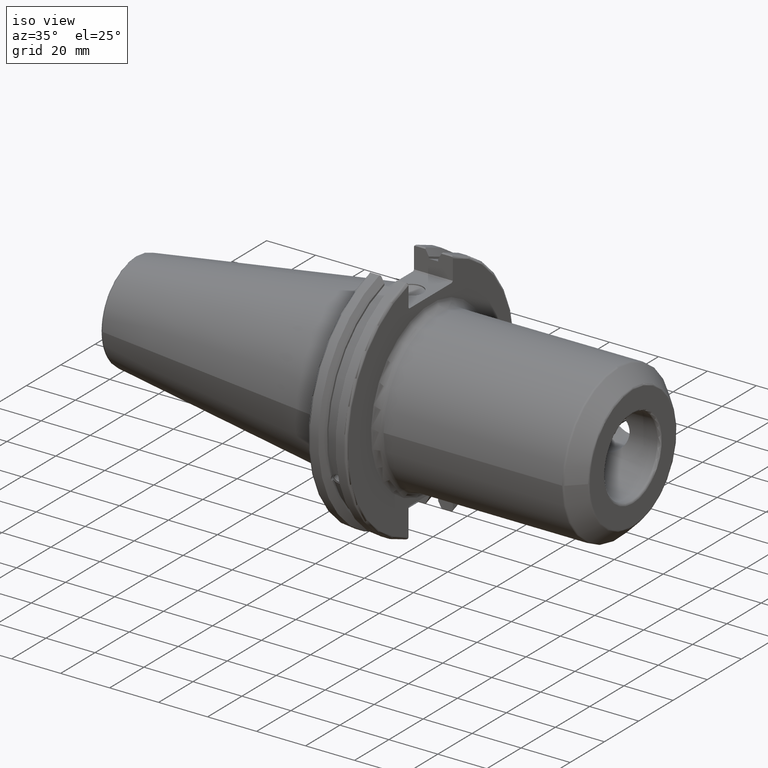
[diagram: clean part render]
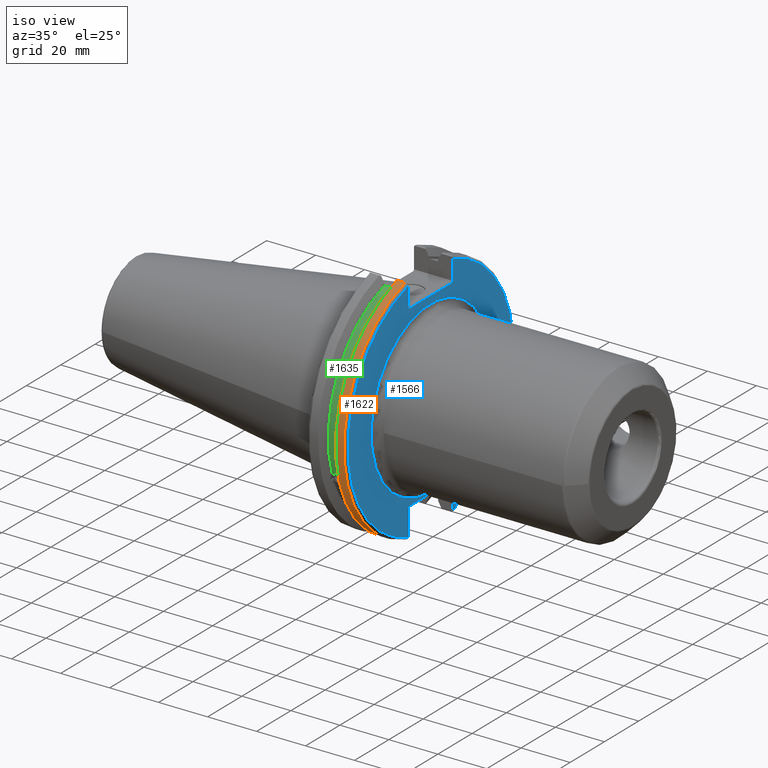
[diagram: same view with three faces highlighted in distinct colors, each labeled with its STEP entity id]
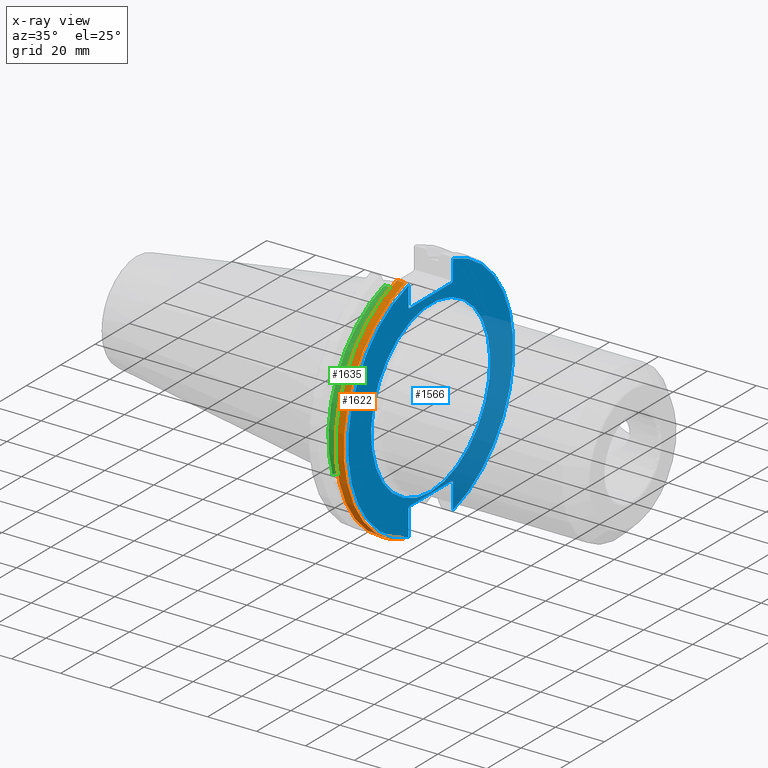
[diagram: x-ray of the same camera — body ghosted, the three highlighted faces saturated]
A machine part, iso view with three faces highlighted in distinct colors.
The next image is the same camera in x-ray (body ghosted, the three faces saturated) — at least one of them is partly hidden behind the body in this view.
Their STEP definitions:

[orange] entity #1622 — the highlighted cylindrical surface (partial cylindrical patch) has radius 49.2125 mm, axis along (1, 0, 0).
#192=FACE_OUTER_BOUND('',#307,.T.);
#307=EDGE_LOOP('',(#1434,#1435,#1436,#1437));
#461=LINE('',#3335,#555);
#462=LINE('',#3337,#556);
#555=VECTOR('',#2211,10.);
#556=VECTOR('',#2214,10.);
#598=CIRCLE('',#1729,49.2125);
#624=CIRCLE('',#1780,49.2125);
#713=VERTEX_POINT('',#2811);
#714=VERTEX_POINT('',#2815);
#778=VERTEX_POINT('',#3180);
#779=VERTEX_POINT('',#3189);
#894=EDGE_CURVE('',#714,#713,#598,.T.);
#981=EDGE_CURVE('',#778,#779,#624,.T.);
#1025=EDGE_CURVE('',#779,#713,#461,.T.);
#1026=EDGE_CURVE('',#714,#778,#462,.T.);
#1434=ORIENTED_EDGE('',*,*,#981,.F.);
#1435=ORIENTED_EDGE('',*,*,#1026,.F.);
#1436=ORIENTED_EDGE('',*,*,#894,.T.);
#1437=ORIENTED_EDGE('',*,*,#1025,.F.);
#1545=CYLINDRICAL_SURFACE('',#1808,49.2125);
#1622=ADVANCED_FACE('',(#192),#1545,.T.);
#1729=AXIS2_PLACEMENT_3D('',#2816,#1997,#1998);
#1780=AXIS2_PLACEMENT_3D('',#3190,#2135,#2136);
#1808=AXIS2_PLACEMENT_3D('',#3336,#2212,#2213);
#1997=DIRECTION('center_axis',(1.,0.,0.));
#1998=DIRECTION('ref_axis',(0.,0.,-1.));
#2135=DIRECTION('center_axis',(1.,0.,0.));
#2136=DIRECTION('ref_axis',(0.,-1.,1.60812264967664E-16));
#2211=DIRECTION('',(-1.,0.,0.));
#2212=DIRECTION('center_axis',(1.,0.,0.));
#2213=DIRECTION('ref_axis',(0.,-1.,1.22464679914735E-16));
#2214=DIRECTION('',(1.,0.,0.));
#2811=CARTESIAN_POINT('',(14.6602090340487,-13.4317035994433,-47.3440544806494));
#2815=CARTESIAN_POINT('',(14.6602090340487,-13.4317035994433,47.3440544806494));
#2816=CARTESIAN_POINT('Origin',(14.6602090340487,0.,0.));
#3180=CARTESIAN_POINT('',(18.05,-13.4317035994433,47.3440544806494));
#3189=CARTESIAN_POINT('',(18.05,-13.4317035994433,-47.3440544806494));
#3190=CARTESIAN_POINT('Origin',(18.05,0.,0.));
#3335=CARTESIAN_POINT('',(16.8551045170244,-13.4317035994433,-47.3440544806494));
#3336=CARTESIAN_POINT('Origin',(16.8551045170244,0.,0.));
#3337=CARTESIAN_POINT('',(16.8551045170244,-13.4317035994433,47.3440544806494));

[blue] entity #1566 — the highlighted planar face has unit normal (1, 0, 0).
#64=FACE_BOUND('',#235,.T.);
#86=PLANE('',#1702);
#136=FACE_OUTER_BOUND('',#234,.T.);
#234=EDGE_LOOP('',(#1118,#1119,#1120,#1121,#1122,#1123,#1124,#1125,#1126,
#1127,#1128,#1129));
#235=EDGE_LOOP('',(#1130));
#383=LINE('',#2503,#477);
#384=LINE('',#2505,#478);
#385=LINE('',#2507,#479);
#386=LINE('',#2509,#480);
#387=LINE('',#2511,#481);
#388=LINE('',#2515,#482);
#389=LINE('',#2517,#483);
#390=LINE('',#2519,#484);
#391=LINE('',#2521,#485);
#392=LINE('',#2522,#486);
#477=VECTOR('',#1925,10.);
#478=VECTOR('',#1926,10.);
#479=VECTOR('',#1927,10.);
#480=VECTOR('',#1928,10.);
#481=VECTOR('',#1929,10.);
#482=VECTOR('',#1932,10.);
#483=VECTOR('',#1933,10.);
#484=VECTOR('',#1934,10.);
#485=VECTOR('',#1935,10.);
#486=VECTOR('',#1936,10.);
#585=CIRCLE('',#1701,34.75);
#586=CIRCLE('',#1703,48.2125);
#587=CIRCLE('',#1704,48.2125);
#670=VERTEX_POINT('',#2495);
#671=VERTEX_POINT('',#2499);
#672=VERTEX_POINT('',#2500);
#673=VERTEX_POINT('',#2502);
#674=VERTEX_POINT('',#2504);
#675=VERTEX_POINT('',#2506);
#676=VERTEX_POINT('',#2508);
#677=VERTEX_POINT('',#2510);
#678=VERTEX_POINT('',#2512);
#679=VERTEX_POINT('',#2514);
#680=VERTEX_POINT('',#2516);
#681=VERTEX_POINT('',#2518);
#682=VERTEX_POINT('',#2520);
#843=EDGE_CURVE('',#670,#670,#585,.T.);
#844=EDGE_CURVE('',#671,#672,#586,.T.);
#845=EDGE_CURVE('',#671,#673,#383,.T.);
#846=EDGE_CURVE('',#674,#673,#384,.T.);
#847=EDGE_CURVE('',#674,#675,#385,.T.);
#848=EDGE_CURVE('',#676,#675,#386,.T.);
#849=EDGE_CURVE('',#676,#677,#387,.T.);
#850=EDGE_CURVE('',#678,#677,#587,.T.);
#851=EDGE_CURVE('',#678,#679,#388,.T.);
#852=EDGE_CURVE('',#680,#679,#389,.T.);
#853=EDGE_CURVE('',#680,#681,#390,.T.);
#854=EDGE_CURVE('',#682,#681,#391,.T.);
#855=EDGE_CURVE('',#682,#672,#392,.T.);
#1118=ORIENTED_EDGE('',*,*,#844,.F.);
#1119=ORIENTED_EDGE('',*,*,#845,.T.);
#1120=ORIENTED_EDGE('',*,*,#846,.F.);
#1121=ORIENTED_EDGE('',*,*,#847,.T.);
#1122=ORIENTED_EDGE('',*,*,#848,.F.);
#1123=ORIENTED_EDGE('',*,*,#849,.T.);
#1124=ORIENTED_EDGE('',*,*,#850,.F.);
#1125=ORIENTED_EDGE('',*,*,#851,.T.);
#1126=ORIENTED_EDGE('',*,*,#852,.F.);
#1127=ORIENTED_EDGE('',*,*,#853,.T.);
#1128=ORIENTED_EDGE('',*,*,#854,.F.);
#1129=ORIENTED_EDGE('',*,*,#855,.T.);
#1130=ORIENTED_EDGE('',*,*,#843,.F.);
#1566=ADVANCED_FACE('',(#136,#64),#86,.T.);
#1701=AXIS2_PLACEMENT_3D('',#2497,#1919,#1920);
#1702=AXIS2_PLACEMENT_3D('',#2498,#1921,#1922);
#1703=AXIS2_PLACEMENT_3D('',#2501,#1923,#1924);
#1704=AXIS2_PLACEMENT_3D('',#2513,#1930,#1931);
#1919=DIRECTION('center_axis',(1.,0.,0.));
#1920=DIRECTION('ref_axis',(0.,-1.,-1.22464679914735E-16));
#1921=DIRECTION('center_axis',(1.,0.,0.));
#1922=DIRECTION('ref_axis',(0.,0.,-1.));
#1923=DIRECTION('center_axis',(-1.,0.,0.));
#1924=DIRECTION('ref_axis',(0.,1.,-6.12323399573677E-17));
#1925=DIRECTION('',(0.,0.,-1.));
#1926=DIRECTION('',(0.,0.707106781186549,0.707106781186546));
#1927=DIRECTION('',(0.,-1.,0.));
#1928=DIRECTION('',(0.,0.707106781186549,-0.707106781186546));
#1929=DIRECTION('',(0.,0.,1.));
#1930=DIRECTION('center_axis',(-1.,0.,0.));
#1931=DIRECTION('ref_axis',(0.,-1.,1.60812264967664E-16));
#1932=DIRECTION('',(0.,0.,1.));
#1933=DIRECTION('',(0.,-0.707106781186549,-0.707106781186546));
#1934=DIRECTION('',(0.,1.,0.));
#1935=DIRECTION('',(0.,-0.707106781186549,0.707106781186546));
#1936=DIRECTION('',(0.,0.,-1.));
#2495=CARTESIAN_POINT('',(19.05,-4.25564762703705E-15,-34.75));
#2497=CARTESIAN_POINT('Origin',(19.05,0.,0.));
#2498=CARTESIAN_POINT('Origin',(19.05,0.,0.));
#2499=CARTESIAN_POINT('',(19.05,12.95,46.4407434937254));
#2500=CARTESIAN_POINT('',(19.05,12.95,-46.4407434937254));
#2501=CARTESIAN_POINT('Origin',(19.05,0.,0.));
#2502=CARTESIAN_POINT('',(19.05,12.95,38.219));
#2503=CARTESIAN_POINT('',(19.05,12.95,18.8595));
#2504=CARTESIAN_POINT('',(19.05,12.45,37.719));
#2505=CARTESIAN_POINT('',(19.05,0.0327499999999836,25.30175));
#2506=CARTESIAN_POINT('',(19.05,-12.45,37.719));
#2507=CARTESIAN_POINT('',(19.05,0.,37.719));
#2508=CARTESIAN_POINT('',(19.05,-12.95,38.219));
#2509=CARTESIAN_POINT('',(19.05,-0.0327499999999817,25.30175));
#2510=CARTESIAN_POINT('',(19.05,-12.95,46.4407434937254));
#2511=CARTESIAN_POINT('',(19.05,-12.95,18.8595));
#2512=CARTESIAN_POINT('',(19.05,-12.95,-46.4407434937254));
#2513=CARTESIAN_POINT('Origin',(19.05,0.,0.));
#2514=CARTESIAN_POINT('',(19.05,-12.95,-35.806));
#2515=CARTESIAN_POINT('',(19.05,-12.95,-17.653));
#2516=CARTESIAN_POINT('',(19.05,-12.45,-35.306));
#2517=CARTESIAN_POINT('',(19.05,-0.635999999999989,-23.492));
#2518=CARTESIAN_POINT('',(19.05,12.45,-35.306));
#2519=CARTESIAN_POINT('',(19.05,-3.33066907387547E-15,-35.306));
#2520=CARTESIAN_POINT('',(19.05,12.95,-35.806));
#2521=CARTESIAN_POINT('',(19.05,0.635999999999982,-23.492));
#2522=CARTESIAN_POINT('',(19.05,12.95,-17.653));

[green] entity #1635 — the highlighted cylindrical surface (partial cylindrical patch) has radius 45.6435 mm, axis along (1, 0, 0).
#205=FACE_OUTER_BOUND('',#320,.T.);
#320=EDGE_LOOP('',(#1493,#1494,#1495,#1496));
#347=B_SPLINE_CURVE_WITH_KNOTS('',3,(#2728,#2729,#2730,#2731,#2732,#2733,
#2734,#2735,#2736,#2737,#2738,#2739,#2740,#2741),.UNSPECIFIED.,.F.,.F.,
(4,2,2,2,2,2,4),(0.40154831257669,0.474697095495631,0.553813286063443,0.632929476631254,
0.712045667199066,0.791161857766877,0.864310640685818),.UNSPECIFIED.);
#444=LINE('',#3217,#538);
#538=VECTOR('',#2142,10.);
#640=CIRCLE('',#1826,45.6435);
#642=CIRCLE('',#1830,45.6435);
#699=VERTEX_POINT('',#2725);
#700=VERTEX_POINT('',#2727);
#783=VERTEX_POINT('',#3214);
#784=VERTEX_POINT('',#3216);
#877=EDGE_CURVE('',#700,#699,#347,.T.);
#988=EDGE_CURVE('',#784,#783,#444,.T.);
#1038=EDGE_CURVE('',#783,#700,#640,.T.);
#1040=EDGE_CURVE('',#784,#699,#642,.T.);
#1493=ORIENTED_EDGE('',*,*,#877,.T.);
#1494=ORIENTED_EDGE('',*,*,#1040,.F.);
#1495=ORIENTED_EDGE('',*,*,#988,.T.);
#1496=ORIENTED_EDGE('',*,*,#1038,.T.);
#1550=CYLINDRICAL_SURFACE('',#1829,45.6435);
#1635=ADVANCED_FACE('',(#205),#1550,.T.);
#1826=AXIS2_PLACEMENT_3D('',#3366,#2253,#2254);
#1829=AXIS2_PLACEMENT_3D('',#3369,#2259,#2260);
#1830=AXIS2_PLACEMENT_3D('',#3370,#2261,#2262);
#2142=DIRECTION('',(-1.,0.,0.));
#2253=DIRECTION('center_axis',(1.,0.,0.));
#2254=DIRECTION('ref_axis',(0.,0.,-1.));
#2259=DIRECTION('center_axis',(1.,0.,0.));
#2260=DIRECTION('ref_axis',(0.,-0.888619069115281,0.458645996390125));
#2261=DIRECTION('center_axis',(1.,0.,0.));
#2262=DIRECTION('ref_axis',(0.,0.,-1.));
#2725=CARTESIAN_POINT('',(13.0491,-43.1779814500336,-14.7983448449669));
#2727=CARTESIAN_POINT('',(9.2191,-43.1779814500336,-14.7983448449669));
#2728=CARTESIAN_POINT('Ctrl Pts',(9.2191,-43.1779814500335,-14.7983448449669));
#2729=CARTESIAN_POINT('Ctrl Pts',(9.32532177598176,-43.2545173750974,-14.5750315766731));
#2730=CARTESIAN_POINT('Ctrl Pts',(9.47680807557666,-43.3223492818373,-14.3712521044637));
#2731=CARTESIAN_POINT('Ctrl Pts',(9.83560503400179,-43.4340904392251,-14.0300988117073));
#2732=CARTESIAN_POINT('Ctrl Pts',(10.0717203280543,-43.4832903960863,-13.8760243976176));
#2733=CARTESIAN_POINT('Ctrl Pts',(10.5891059167872,-43.54802519266,-13.6715068146718));
#2734=CARTESIAN_POINT('Ctrl Pts',(10.870379364774,-43.5636826100883,-13.6211104428929));
#2735=CARTESIAN_POINT('Ctrl Pts',(11.397820635226,-43.5636826100883,-13.6211104428929));
#2736=CARTESIAN_POINT('Ctrl Pts',(11.6790940832128,-43.54802519266,-13.6715068146718));
#2737=CARTESIAN_POINT('Ctrl Pts',(12.1964796719457,-43.4832903960863,-13.8760243976176));
#2738=CARTESIAN_POINT('Ctrl Pts',(12.4325949659982,-43.4340904392251,-14.0300988117073));
#2739=CARTESIAN_POINT('Ctrl Pts',(12.7913919244233,-43.3223492818373,-14.3712521044637));
#2740=CARTESIAN_POINT('Ctrl Pts',(12.9428782240182,-43.2545173750974,-14.5750315766731));
#2741=CARTESIAN_POINT('Ctrl Pts',(13.0491,-43.1779814500335,-14.7983448449669));
#3214=CARTESIAN_POINT('',(9.2191,-12.95,43.7678716897452));
#3216=CARTESIAN_POINT('',(13.0491,-12.95,43.7678716897452));
#3217=CARTESIAN_POINT('',(11.1341,-12.95,43.7678716897452));
#3366=CARTESIAN_POINT('Origin',(9.2191,0.,0.));
#3369=CARTESIAN_POINT('Origin',(11.1341,0.,0.));
#3370=CARTESIAN_POINT('Origin',(13.0491,0.,0.));